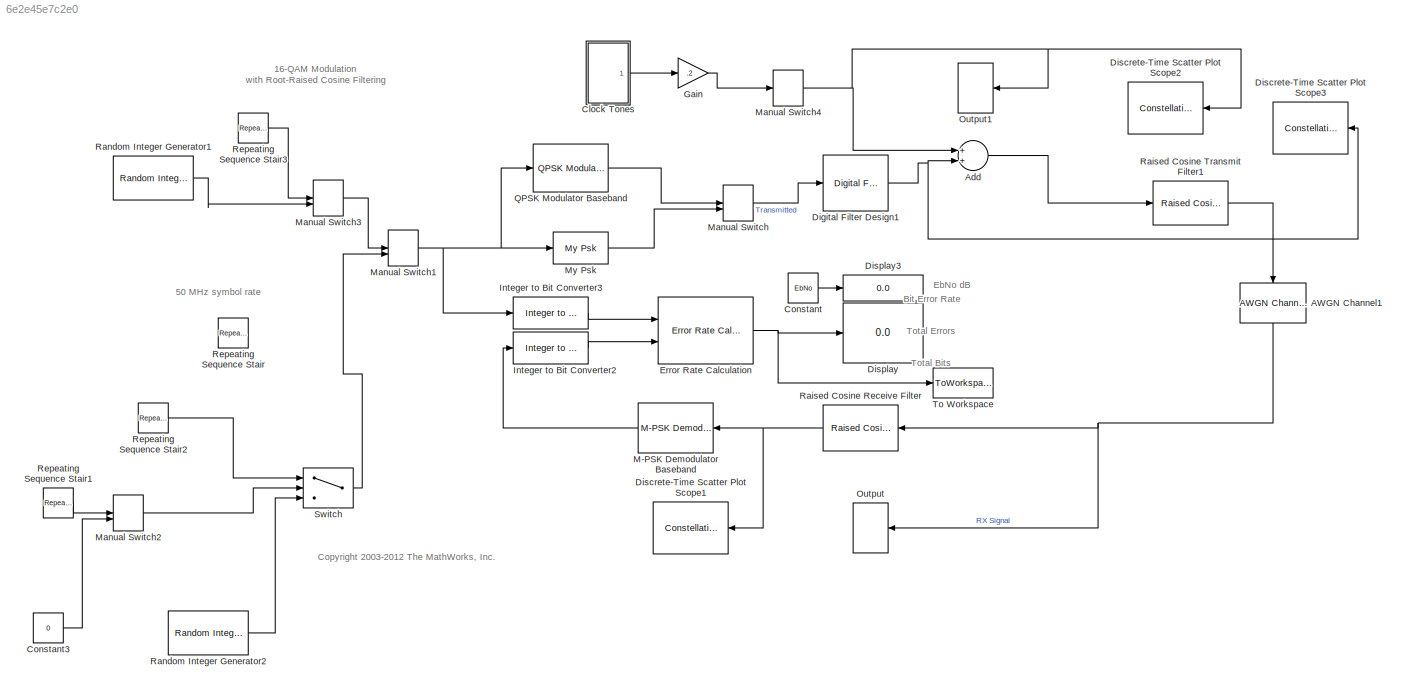
MODEL slx_6e2e45e7c2e0
KIND model
CONFIG PostLoadFcn = noiseVec = [2 3.5 5 25];\ngainVec = 10.0.^(0.05*[-2 30 -6 35]);\noip3Vec = [100 100 100 100];\nEbNo = 13; % dB\nM = 4; % bits per symbol\nmaxerr = 100;\nmaxbits = 1e8;\nN = 8;  % Upsampling factor\nrrc_delay = 4; % symbols\n\n\n% Ben:\niqSampTime = 1/(50e6*8);\niqSpread = 5e6;\niqFreq = 200e6;
BLOCK [Reference] AWGN Channel1  REF=commchan3/AWGN
Channel
  Commented = through
  EbNodB = EbNo
  EsNodB = EbNo + 10*log10(M)
  InputProcessing = Columns as channels (frame based)
  Ports = [1, 1]
  Ps = 1
  SNRdB = EbNo + 10*log10(M) - 10*log10(N)
  SourceBlock = commchan3/AWGN\nChannel
  SourceType = AWGN Channel
  Tsym = 1/50e6
  UserDataPersistent = on
  bitsPerSym = M
  noiseMode = Signal to noise ratio  (Eb/No)
  seed = 97
  variance = 10^(-EbNo/20)
BLOCK [Sum] Add
  InputSameDT = off
  OutDataTypeStr = Inherit: Inherit via internal rule
  Ports = [2, 1]
  SaturateOnIntegerOverflow = off
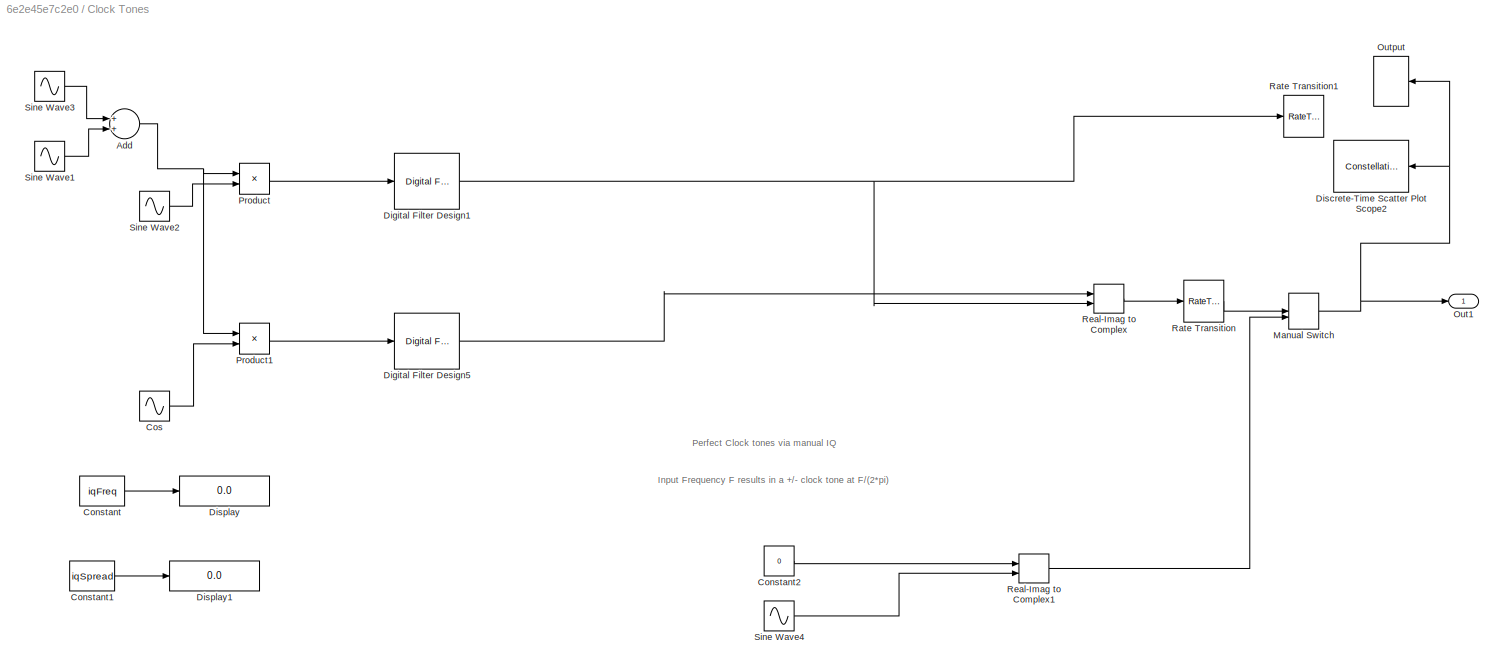
BLOCK [SubSystem] Clock Tones
  Ports = [0, 1]
  RequestExecContextInheritance = off
BLOCK [Sum] Clock Tones/Add
  InputSameDT = off
  OutDataTypeStr = Inherit: Inherit via internal rule
  Ports = [2, 1]
  SaturateOnIntegerOverflow = off
BLOCK [Constant] Clock Tones/Constant
  Value = iqFreq
BLOCK [Constant] Clock Tones/Constant1
  Value = iqSpread
BLOCK [Constant] Clock Tones/Constant2
  SampleTime = iqSampTime
  Value = 0
BLOCK [Sin] Clock Tones/Cos 
  Frequency = iqFreq
  Phase = -1*pi/2
  Ports = [0, 1]
BLOCK [Reference] Clock Tones/Digital Filter Design1  REF=dsparch4/Digital
Filter Design
  Ports = [1, 1]
  SourceBlock = dsparch4/Digital\nFilter Design
  SourceType = Digital Filter Design
  UserDataPersistent = on
  mwdsp_browser_bugfix_var = off
BLOCK [Reference] Clock Tones/Digital Filter Design5  REF=dsparch4/Digital
Filter Design
  Ports = [1, 1]
  SourceBlock = dsparch4/Digital\nFilter Design
  SourceType = Digital Filter Design
  UserDataPersistent = on
  mwdsp_browser_bugfix_var = off
BLOCK [ConstellationDiagram] Clock Tones/Discrete-Time Scatter Plot Scope2
  Ports = [1]
  ScopeSpecificationString = comm.scopes.ConstellationDiagramBlockCfg('CurrentConfiguration', extmgr.ConfigurationSet(extmgr.Configuration('Core','General UI',true),extmgr.Configuration('Core','Source UI',true),extmgr.Configuration('Sources','WiredSimulink',true),extmgr.Configuration('Sources','Simulink',false),extmgr.Configuration('Sources','File',false),extmgr.Configuration('Sources','Workspace',false),extmgr.Configuration(...<+1843ch>
  Tag = ScatterPlot
BLOCK [Display] Clock Tones/Display
  Decimation = 1
  Format = decimal (Stored Integer)
  Ports = [1]
BLOCK [Display] Clock Tones/Display1
  Decimation = 1
  Format = decimal (Stored Integer)
  Ports = [1]
BLOCK [ManualSwitch] Clock Tones/Manual Switch
  CurrentSetting = 0
BLOCK [Outport] Clock Tones/Out1
  IconDisplay = Port number
BLOCK [SpectrumAnalyzer] Clock Tones/Output
  Ports = [1]
  ScopeSpecificationString = spbscopes.SpectrumAnalyzerBlockCfg('CurrentConfiguration', extmgr.ConfigurationSet(extmgr.Configuration('Core','General UI',true,'DisplayFullSourceName',true,'FigureColor',[0.941176470588235 0.941176470588235 0.941176470588235]),extmgr.Configuration('Core','Source UI',true),extmgr.Configuration('Sources','WiredSimulink',true),extmgr.Configuration('Sources','Simulink',false),extmgr.Configuration('S...<+7378ch>
BLOCK [Product] Clock Tones/Product
  InputSameDT = off
  OutDataTypeStr = Inherit: Inherit via internal rule
  Ports = [2, 1]
  RndMeth = Floor
  SaturateOnIntegerOverflow = off
BLOCK [Product] Clock Tones/Product1
  InputSameDT = off
  OutDataTypeStr = Inherit: Inherit via internal rule
  Ports = [2, 1]
  RndMeth = Floor
  SaturateOnIntegerOverflow = off
BLOCK [RateTransition] Clock Tones/Rate Transition
  OutPortSampleTime = iqSampTime
BLOCK [RateTransition] Clock Tones/Rate Transition1
  OutPortSampleTime = iqSampTime
BLOCK [RealImagToComplex] Clock Tones/Real-Imag to Complex
  Ports = [2, 1]
BLOCK [RealImagToComplex] Clock Tones/Real-Imag to Complex1
  Ports = [2, 1]
BLOCK [Sin] Clock Tones/Sine Wave1
  Frequency = iqFreq - iqSpread
  Ports = [0, 1]
BLOCK [Sin] Clock Tones/Sine Wave2
  Frequency = iqFreq
  Ports = [0, 1]
BLOCK [Sin] Clock Tones/Sine Wave3
  Frequency = iqFreq + iqSpread
  Ports = [0, 1]
BLOCK [Sin] Clock Tones/Sine Wave4
  Frequency = 0.781*2*3.14*1000000
  Ports = [0, 1]
  SampleTime = iqSampTime
BLOCK [Constant] Constant
  Value = EbNo
BLOCK [Constant] Constant3
  Value = 0
BLOCK [Reference] Digital Filter Design1  REF=dsparch4/Digital
Filter Design
  Commented = through
  Ports = [1, 1]
  SourceBlock = dsparch4/Digital\nFilter Design
  SourceType = Digital Filter Design
  UserDataPersistent = on
  mwdsp_browser_bugfix_var = off
BLOCK [ConstellationDiagram] Discrete-Time Scatter Plot Scope1
  Ports = [1]
  ScopeSpecificationString = comm.scopes.ConstellationDiagramBlockCfg('CurrentConfiguration', extmgr.ConfigurationSet(extmgr.Configuration('Core','General UI',true),extmgr.Configuration('Core','Source UI',true),extmgr.Configuration('Sources','WiredSimulink',true),extmgr.Configuration('Sources','Simulink',false),extmgr.Configuration('Sources','File',false),extmgr.Configuration('Sources','Workspace',false),extmgr.Configuration(...<+1868ch>
  Tag = ScatterPlot
BLOCK [ConstellationDiagram] Discrete-Time Scatter Plot Scope2
  Ports = [1]
  ScopeSpecificationString = comm.scopes.ConstellationDiagramBlockCfg('CurrentConfiguration', extmgr.ConfigurationSet(extmgr.Configuration('Core','General UI',true),extmgr.Configuration('Core','Source UI',true),extmgr.Configuration('Sources','WiredSimulink',true),extmgr.Configuration('Sources','Simulink',false),extmgr.Configuration('Sources','File',false),extmgr.Configuration('Sources','Workspace',false),extmgr.Configuration(...<+1867ch>
  Tag = ScatterPlot
BLOCK [ConstellationDiagram] Discrete-Time Scatter Plot Scope3
  Ports = [1]
  ScopeSpecificationString = comm.scopes.ConstellationDiagramBlockCfg('CurrentConfiguration', extmgr.ConfigurationSet(extmgr.Configuration('Core','General UI',true),extmgr.Configuration('Core','Source UI',true),extmgr.Configuration('Sources','WiredSimulink',true),extmgr.Configuration('Sources','Simulink',false),extmgr.Configuration('Sources','File',false),extmgr.Configuration('Sources','Workspace',false),extmgr.Configuration(...<+1868ch>
  Tag = ScatterPlot
BLOCK [Display] Display
  Commented = on
  Decimation = 1
  Ports = [1]
BLOCK [Display] Display3
  Decimation = 1
  Ports = [1]
BLOCK [Reference] Error Rate Calculation  REF=commsink2/Error Rate
Calculation
  Commented = on
  N = 2*rrc_delay*M
  PMode = Port
  Ports = [2, 1]
  RsMode2 = off
  SourceBlock = commsink2/Error Rate\nCalculation
  SourceType = Error Rate Calculation
  WsName = QAM_BER
  cp_mode = Entire frame
  maxBits = maxbits
  numErr = maxerr
  st_delay = 2*rrc_delay*M*1024
  stop = off
  subframe = []
BLOCK [Gain] Gain
  Gain = .2
  OutDataTypeStr = Inherit: Inherit via internal rule
  ParamDataTypeStr = Inherit: Inherit via internal rule
  SaturateOnIntegerOverflow = off
BLOCK [Reference] Integer to Bit Converter2  REF=commutil2/Integer to Bit
Converter
  Commented = on
  Ports = [1, 1]
  SourceBlock = commutil2/Integer to Bit\nConverter
  SourceType = Integer to Bit Converter
  bitOrder = MSB first
  nbits = M
  outDtype = Inherit via internal rule
  signedInputValues = Unsigned
BLOCK [Reference] Integer to Bit Converter3  REF=commutil2/Integer to Bit
Converter
  Commented = on
  Ports = [1, 1]
  SourceBlock = commutil2/Integer to Bit\nConverter
  SourceType = Integer to Bit Converter
  bitOrder = MSB first
  nbits = M
  outDtype = Inherit via internal rule
  signedInputValues = Unsigned
BLOCK [Reference] M-PSK Demodulator Baseband  REF=commdigbbndpm3/M-PSK
Demodulator
Baseband
  Commented = on
  Dec = Binary
  DecType = Hard decision
  M = 4
  Mapping = [0:7]
  OutType = Integer
  Ph = pi/4
  Ports = [1, 1]
  SourceBlock = commdigbbndpm3/M-PSK\nDemodulator\nBaseband
  SourceType = M-PSK Demodulator Baseband
  VarSource = Dialog
  Variance = 1
  derotateFactorDTMode = Same word length as input
  derotateFactorWordLen = 16
  outDtype1 = Inherit via internal rule
  outDtype2 = Inherit via internal rule
BLOCK [ManualSwitch] Manual Switch
  CurrentSetting = 0
BLOCK [ManualSwitch] Manual Switch1
BLOCK [ManualSwitch] Manual Switch2
BLOCK [ManualSwitch] Manual Switch3
  CurrentSetting = 0
BLOCK [ManualSwitch] Manual Switch4
BLOCK [Reference] My Psk  REF=siglabs_lib/My Psk
  Ports = [1, 1]
  SampsPerSym = 8
  SourceBlock = siglabs_lib/My Psk
BLOCK [SpectrumAnalyzer] Output
  Ports = [1]
  ScopeSpecificationString = spbscopes.SpectrumAnalyzerBlockCfg('CurrentConfiguration', extmgr.ConfigurationSet(extmgr.Configuration('Core','General UI',true,'DisplayFullSourceName',true,'FigureColor',[0.941176470588235 0.941176470588235 0.941176470588235]),extmgr.Configuration('Core','Source UI',true),extmgr.Configuration('Sources','WiredSimulink',true),extmgr.Configuration('Sources','Simulink',false),extmgr.Configuration('S...<+7239ch>
BLOCK [SpectrumAnalyzer] Output1
  Commented = on
  Ports = [1]
  ScopeSpecificationString = spbscopes.SpectrumAnalyzerBlockCfg('CurrentConfiguration', extmgr.ConfigurationSet(extmgr.Configuration('Core','General UI',true,'DisplayFullSourceName',true,'FigureColor',[0.941176470588235 0.941176470588235 0.941176470588235]),extmgr.Configuration('Core','Source UI',true),extmgr.Configuration('Sources','WiredSimulink',true),extmgr.Configuration('Sources','Simulink',false),extmgr.Configuration('S...<+7142ch>
BLOCK [Reference] QPSK Modulator Baseband  REF=commdigbbndpm3/QPSK
Modulator
Baseband
  Commented = on
  Enc = Binary
  InType = Integer
  Ph = pi/4
  Ports = [1, 1]
  SourceBlock = commdigbbndpm3/QPSK\nModulator\nBaseband
  SourceType = QPSK Modulator Baseband
  outDtype = double
  outFracLen = 15
  outFracLenMode = Best precision
  outUDDataType = sfix(16)
  outWordLen = 16
BLOCK [Reference] Raised Cosine Receive Filter  REF=commfilt2/Raised Cosine
Receive Filter
  Commented = through
  D = (2*(rrc_delay))/2
  InputProcessing = Columns as channels (frame based)
  LockScale = off
  N = N
  Ports = [1, 1]
  R = 0.2
  SourceBlock = commfilt2/Raised Cosine\nReceive Filter
  SourceType = Raised Cosine Receive Filter
  UserDataPersistent = on
  accumFracLength = 30
  accumMode = Same as product output
  accumWordLength = 32
  checkCoeff = off
  checkGain = User-specified
  coeffFracLength = 15
  coeffMode = Same word length as input
  coeffWordLength = 16
  currentFiltSpan = 2*(rrc_delay)
  downFactor = N
  downOffset = 0
  filtSpan = 2*(rrc_delay)
  filtType = Square root
  filterGain = sqrt(1/N)
  framing = Enforce single-rate processing
  launchFVT = off
  outputFracLength = 15
  outputMode = Same as accumulator
  outputWordLength = 16
  overflowMode = off
  prodOutputFracLength = 30
  prodOutputMode = Same as input
  prodOutputWordLength = 32
  rateMode = Downsampling
  roundingMode = Floor
  sampMode = Mute
  saveAsFlag = 0
  variableName = rcRxFilt
BLOCK [Reference] Raised Cosine Transmit Filter1  REF=commfilt2/Raised Cosine
Transmit Filter
  Commented = through
  D = (2*(rrc_delay))/2
  InputProcessing = Columns as channels (frame based)
  LockScale = off
  N = N
  Ports = [1, 1]
  R = 0.2
  SourceBlock = commfilt2/Raised Cosine\nTransmit Filter
  SourceType = Raised Cosine Transmit Filter
  UserDataPersistent = on
  accumFracLength = 30
  accumMode = Inherit via internal rule
  accumWordLength = 32
  checkCoeff = off
  checkGain = User-specified
  coeffFracLength = 15
  coeffMode = Same word length as input
  coeffWordLength = 16
  currentFiltSpan = 2*(rrc_delay)
  filtSpan = 2*(rrc_delay)
  filtType = Square root
  filterGain = sqrt(N)
  framing = Enforce single-rate processing
  launchFVT = off
  outputFracLength = 15
  outputMode = Same as accumulator
  outputWordLength = 16
  overflowMode = off
  prodOutputFracLength = 30
  prodOutputMode = Inherit via internal rule
  prodOutputWordLength = 32
  roundingMode = Floor
  sampMode = Mute
  saveAsFlag = 0
  variableName = rcTxFilt1
BLOCK [Reference] Random Integer Generator1  REF=commrandsrc2/Random Integer
Generator
  Ports = [0, 1]
  SourceBlock = commrandsrc2/Random Integer\nGenerator
  SourceType = Random Integer Generator
  Ts = 0.00000002
  frameBased = off
  mul = 4
  orient = off
  outDataType = double
  sampPerFrame = 1024
  seed = 37
BLOCK [Reference] Random Integer Generator2  REF=commrandsrc2/Random Integer
Generator
  Ports = [0, 1]
  SourceBlock = commrandsrc2/Random Integer\nGenerator
  SourceType = Random Integer Generator
  Ts = 0.00000002
  frameBased = off
  mul = 4
  orient = off
  outDataType = double
  sampPerFrame = 1024
  seed = 37
BLOCK [Reference] Repeating Sequence Stair  REF=simulink/Sources/Repeating
Sequence
Stair
  ConRadixGroup = Best Precision: Vector-wise
  LockScale = off
  OutDataType = fixdt(0,8)
  OutDataTypeStr = double
  OutMax = []
  OutMin = []
  OutScaling = 2^-12
  OutValues = [0 1 3 2 0 3 2 3 2 2 1 2 1 0 2 0 3 0 2 0 0 0 0 1 0 2 0 0 1 2 2 0 3 0 0 2 0 0 3 2 1 1 2 2 0 3 0 0 2 1 3 1 2 2 1 1 3 1 3 2 0 0 3 2 0 3 3 0 3 0 1 3 0 3 3 2 2 1 0 0 2 3 0 3 3 2 3 1 3 1 3 1 1 1 1 3 1 0 3 2 2 0 1 2 3 3 0 0 0 1 2 0 2 3 3 2 0 2 1 3 3 0 2 0 3 2 1 1 3 1 3 3 3 3 1 1 2 2 2 0 0 1 3 0 2 2 2 1 1 3 3 3 3 0 2 2 3 2 3 3 1 1 3 1 0 1 3 3 3 3 0 0 1 3 3 1 2 1 2 0 1 0 2 0 1 0 3 1 0 1 2 1 1 2 0 3 2 0 1 1...<+203ch>
  OutputDataTypeScalingMode = double
  Ports = [0, 1]
  SourceBlock = simulink/Sources/Repeating\nSequence\nStair
  SourceType = Repeating Sequence Stair
  tsamp = 0.00000002
BLOCK [Reference] Repeating Sequence Stair1  REF=simulink/Sources/Repeating
Sequence
Stair
  ConRadixGroup = Best Precision: Vector-wise
  LockScale = off
  OutDataType = fixdt(0,8)
  OutDataTypeStr = double
  OutMax = []
  OutMin = []
  OutScaling = 2^-12
  OutValues = [1 1 1 1 0 0 0 0].'
  OutputDataTypeScalingMode = double
  Ports = [0, 1]
  SourceBlock = simulink/Sources/Repeating\nSequence\nStair
  SourceType = Repeating Sequence Stair
  tsamp = 0.00000002
BLOCK [Reference] Repeating Sequence Stair2  REF=simulink/Sources/Repeating
Sequence
Stair
  ConRadixGroup = Best Precision: Vector-wise
  LockScale = off
  OutDataType = fixdt(0,8)
  OutDataTypeStr = double
  OutMax = []
  OutMin = []
  OutScaling = 2^-12
  OutValues = [4 5 5 4].'
  OutputDataTypeScalingMode = double
  Ports = [0, 1]
  SourceBlock = simulink/Sources/Repeating\nSequence\nStair
  SourceType = Repeating Sequence Stair
  tsamp = 0.00000002
BLOCK [Reference] Repeating Sequence Stair3  REF=simulink/Sources/Repeating
Sequence
Stair
  ConRadixGroup = Best Precision: Vector-wise
  LockScale = off
  OutDataType = fixdt(0,8)
  OutDataTypeStr = double
  OutMax = []
  OutMin = []
  OutScaling = 2^-12
  OutValues = [4 5 5 4].'
  OutputDataTypeScalingMode = double
  Ports = [0, 1]
  SourceBlock = simulink/Sources/Repeating\nSequence\nStair
  SourceType = Repeating Sequence Stair
  tsamp = 0.00000002
BLOCK [Switch] Switch
  Criteria = u2 > Threshold
  InputSameDT = off
  SaturateOnIntegerOverflow = off
BLOCK [ToWorkspace] To Workspace
  Commented = on
  MaxDataPoints = 1
  Ports = [1]
  SampleTime = -1
  VariableName = BER
ANNOTATION (root): 16-QAM Modulation with Root-Raised Cosine Filtering
ANNOTATION (root): 50 MHz symbol rate
ANNOTATION (root): Bit Error Rate
ANNOTATION (root): <copyright redacted>
ANNOTATION (root): EbNo dB
ANNOTATION (root): Total Bits
ANNOTATION (root): Total Errors
ANNOTATION Clock Tones: Perfect Clock tones via manual IQ
ANNOTATION Clock Tones: Input Frequency F results in a +/- clock tone at F/(2*pi)
NET AWGN Channel1:1 -> Output:1, Raised Cosine Receive Filter:1
LINE Add:1 -> Raised Cosine Transmit Filter1:1
NET Clock Tones/Add:1 -> Clock Tones/Product1:1, Clock Tones/Product:1
LINE Clock Tones/Constant1:1 -> Clock Tones/Display1:1
LINE Clock Tones/Constant2:1 -> Clock Tones/Real-Imag to Complex1:1
LINE Clock Tones/Constant:1 -> Clock Tones/Display:1
LINE Clock Tones/Cos :1 -> Clock Tones/Product1:2
NET Clock Tones/Digital Filter Design1:1 -> Clock Tones/Rate Transition1:1, Clock Tones/Real-Imag to Complex:2
LINE Clock Tones/Digital Filter Design5:1 -> Clock Tones/Real-Imag to Complex:1
NET Clock Tones/Manual Switch:1 -> Clock Tones/Discrete-Time Scatter Plot Scope2:1, Clock Tones/Out1:1, Clock Tones/Output:1
LINE Clock Tones/Product1:1 -> Clock Tones/Digital Filter Design5:1
LINE Clock Tones/Product:1 -> Clock Tones/Digital Filter Design1:1
LINE Clock Tones/Rate Transition:1 -> Clock Tones/Manual Switch:1
LINE Clock Tones/Real-Imag to Complex1:1 -> Clock Tones/Manual Switch:2
LINE Clock Tones/Real-Imag to Complex:1 -> Clock Tones/Rate Transition:1
LINE Clock Tones/Sine Wave1:1 -> Clock Tones/Add:2
LINE Clock Tones/Sine Wave2:1 -> Clock Tones/Product:2
LINE Clock Tones/Sine Wave3:1 -> Clock Tones/Add:1
LINE Clock Tones/Sine Wave4:1 -> Clock Tones/Real-Imag to Complex1:2
LINE Clock Tones:1 -> Gain:1
LINE Constant3:1 -> Manual Switch2:2
LINE Constant:1 -> Display3:1
NET Digital Filter Design1:1 -> Add:2, Discrete-Time Scatter Plot Scope3:1
NET Error Rate Calculation:1 -> Display:1, To Workspace:1
LINE Gain:1 -> Manual Switch4:1
LINE Integer to Bit Converter2:1 -> Error Rate Calculation:2
LINE Integer to Bit Converter3:1 -> Error Rate Calculation:1
LINE M-PSK Demodulator Baseband:1 -> Integer to Bit Converter2:1
NET Manual Switch1:1 -> Integer to Bit Converter3:1, My Psk:1, QPSK Modulator Baseband:1
LINE Manual Switch2:1 -> Switch:2
LINE Manual Switch3:1 -> Manual Switch1:1
NET Manual Switch4:1 -> Add:1, Discrete-Time Scatter Plot Scope2:1, Output1:1
LINE Manual Switch:1 -> Digital Filter Design1:1
LINE My Psk:1 -> Manual Switch:2
LINE QPSK Modulator Baseband:1 -> Manual Switch:1
NET Raised Cosine Receive Filter:1 -> Discrete-Time Scatter Plot Scope1:1, M-PSK Demodulator Baseband:1
LINE Raised Cosine Transmit Filter1:1 -> AWGN Channel1:1
LINE Random Integer Generator1:1 -> Manual Switch3:2
LINE Random Integer Generator2:1 -> Switch:3
LINE Repeating Sequence Stair1:1 -> Manual Switch2:1
LINE Repeating Sequence Stair2:1 -> Switch:1
LINE Repeating Sequence Stair3:1 -> Manual Switch3:1
LINE Switch:1 -> Manual Switch1:2
note: NET lines group one-source signal fan-out (src -> all destinations, sorted); 1:1 wires keep LINE
